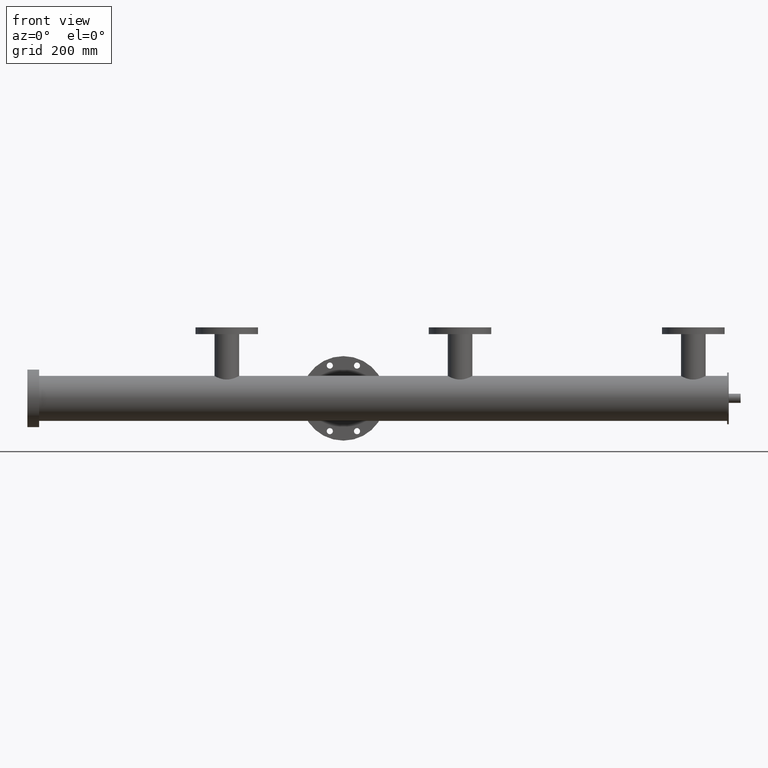
[diagram: clean part render]
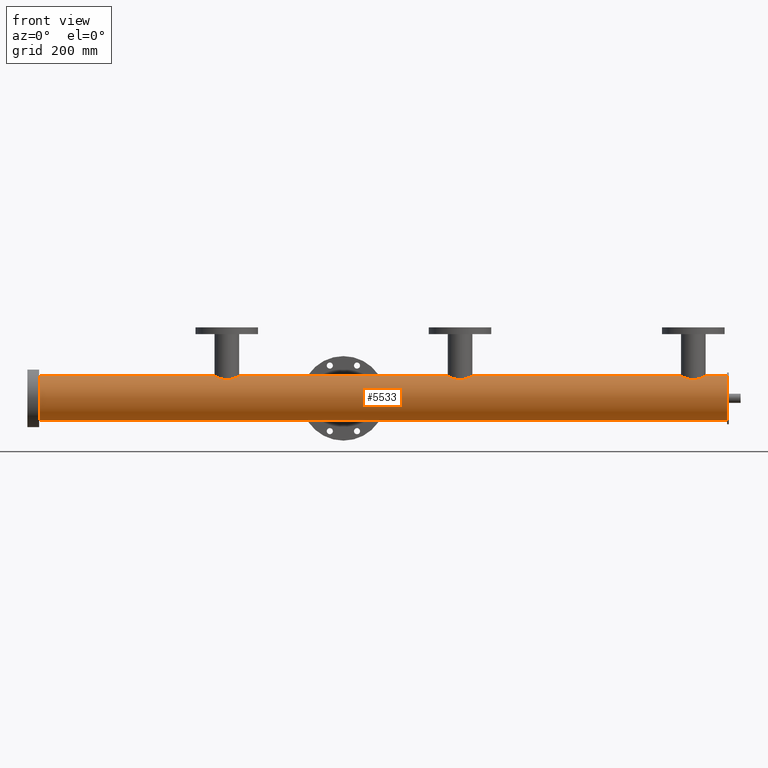
[diagram: same view with one face highlighted and labeled with its STEP entity id]
A machine part, front view. The second image highlights one B-rep face of the part: STEP entity #5533.
In plain terms, the highlighted cylindrical surface (edge-blend (fillet) strip) has radius 66.5 mm, axis along (1, 0, 0).
Its self-contained STEP definition (entity closure, byte-faithful):
#89 = CARTESIAN_POINT ( 'NONE',  ( -490.6003464993487455, -16.33711759300657462, 64.46369925144530555 ) ) ;
#99 = CARTESIAN_POINT ( 'NONE',  ( 239.0838206248115227, -30.38386376601750527, 59.15470864953939412 ) ) ;
#137 = CARTESIAN_POINT ( 'NONE',  ( -490.8624307742287556, -15.87770572054007090, 64.57845619889623379 ) ) ;
#147 = CARTESIAN_POINT ( 'NONE',  ( 251.8978209104271855, -21.49645721872887805, 62.93550375133824559 ) ) ;
#254 = CARTESIAN_POINT ( 'NONE',  ( 946.6439091791817191, -14.54003973623747292, 64.92173641000303519 ) ) ;
#266 = CARTESIAN_POINT ( 'NONE',  ( -429.9999999999997726, -5.798802460949385252E-15, 66.49999999999992895 ) ) ;
#278 = CARTESIAN_POINT ( 'NONE',  ( 1017.500000000000114, 0.000000000000000000, -66.49999999999963052 ) ) ;
#300 = CARTESIAN_POINT ( 'NONE',  ( 948.2341428043525866, -10.58065941645639185, 65.65486511676549242 ) ) ;
#314 = CARTESIAN_POINT ( 'NONE',  ( -494.9999999999998295, 8.143900279030611837E-15, 66.49999999999991473 ) ) ;
#416 = CARTESIAN_POINT ( 'NONE',  ( -455.0221572869511988, -31.63262135138863229, 58.49487150160540239 ) ) ;
#426 = CARTESIAN_POINT ( 'NONE',  ( 196.2799049679013592, -9.046646342517529860, 65.88379997645056108 ) ) ;
#463 = CARTESIAN_POINT ( 'NONE',  ( -458.1775524024804440, -32.28276193811056061, 58.14041014499634485 ) ) ;
#472 = CARTESIAN_POINT ( 'NONE',  ( 201.7124635962680088, -19.89342623918280140, 63.48106952010852666 ) ) ;
#500 = ORIENTED_EDGE ( 'NONE', *, *, #5665, .T. ) ;
#501 = CARTESIAN_POINT ( 'NONE',  ( 893.0432503477297814, -21.50520186190287575, 62.94640447392696103 ) ) ;
#524 = CARTESIAN_POINT ( 'NONE',  ( 215.4374474381412199, -30.18326618409980711, 59.25600196083814808 ) ) ;
#556 = CARTESIAN_POINT ( 'NONE',  ( 937.7312489669564002, -25.44053762020247333, 61.44231490546614793 ) ) ;
#577 = CARTESIAN_POINT ( 'NONE',  ( 885.0000000000001137, 8.143900279030611837E-15, 66.50000000000034106 ) ) ;
#596 = CARTESIAN_POINT ( 'NONE',  ( 885.0000000000001137, 8.143900279030611837E-15, 66.50000000000034106 ) ) ;
#639 = CARTESIAN_POINT ( 'NONE',  ( 937.3174987021217248, -25.76421476236012253, 61.30719563177480325 ) ) ;
#694 = CARTESIAN_POINT ( 'NONE',  ( -460.3097685567193480, -32.49802415920078147, 58.01834564004425232 ) ) ;
#695 = CARTESIAN_POINT ( 'NONE',  ( 916.9893391786833945, -32.50047720460833034, 58.01697149790741292 ) ) ;
#702 = CARTESIAN_POINT ( 'NONE',  ( 260.0000000000001705, 1.451828932459408730E-15, 66.50000000000014211 ) ) ;
#750 = FACE_OUTER_BOUND ( 'NONE', #7704, .T. ) ;
#856 = CARTESIAN_POINT ( 'NONE',  ( 226.4473677612666336, -32.48751152197689862, 58.02424091814594931 ) ) ;
#896 = CARTESIAN_POINT ( 'NONE',  ( -494.2526021183836065, -6.950959456292912897, 66.13787825557211875 ) ) ;
#905 = CARTESIAN_POINT ( 'NONE',  ( 251.1947110778279182, -22.26876835255540499, 62.66552678636684703 ) ) ;
#950 = CARTESIAN_POINT ( 'NONE',  ( 236.5450908552266753, -31.22058121019685828, 58.71590254633272821 ) ) ;
#1050 = ORIENTED_EDGE ( 'NONE', *, *, #7785, .T. ) ;
#1092 = CARTESIAN_POINT ( 'NONE',  ( -1017.500000000000114, 8.143901214329899974E-15, 66.49999999999975842 ) ) ;
#1157 = ORIENTED_EDGE ( 'NONE', *, *, #5733, .F. ) ;
#1167 = CARTESIAN_POINT ( 'NONE',  ( -443.5286975686580035, -26.39351627176981907, 61.03891625320267877 ) ) ;
#1189 = VECTOR ( 'NONE', #3409, 1000.000000000000000 ) ;
#1195 = LINE ( 'NONE', #1092, #2074 ) ;
#1215 = CARTESIAN_POINT ( 'NONE',  ( -435.8351712719633042, -18.58807014262035295, 63.85093123442002394 ) ) ;
#1236 = B_SPLINE_CURVE_WITH_KNOTS ( 'NONE', 3,
 ( #4854, #5815, #4293, #5761, #2556, #7160, #300, #1249, #8856, #254, #6806, #8287, #4482, #1432, #6701, #8942, #7491, #6041, #3741, #556, #639, #3689, #5948, #5147, #5859, #8993, #8898, #2843, #1387, #7541, #6755, #3645, #9799, #695, #2944, #1489, #4434, #5995, #2048, #5901, #8201, #9846, #4392, #5097, #2988, #2092, #9040, #2143, #2187, #1344, #8338, #5242, #9086, #501, #2235, #9742, #5293, #7352, #3555, #4345, #6616, #5195, #2893, #8243, #7450, #9659, #7405, #2802, #3606, #596 ),
 .UNSPECIFIED., .F., .F.,
 ( 4, 2, 2, 2, 2, 2, 2, 2, 2, 2, 2, 2, 2, 2, 2, 2, 2, 2, 2, 2, 2, 2, 2, 2, 2, 2, 2, 2, 2, 2, 2, 2, 2, 2, 4 ),
 ( 5.831139211435620626E-19, 0.006455860333571389158, 0.009683790500357053813, 0.01129775558374988657, 0.01291172066714271933, 0.01936758100071381272, 0.02098154608410646160, 0.02259551116749911395, 0.02582344133428461641, 0.02905137150107011887, 0.03066533658446275387, 0.03227930166785537847, 0.03873516200142537030, 0.04196309216821050847, 0.04357705725160292143, 0.04519102233499533439, 0.05164688266856466703, 0.05326084775195701754, 0.05487481283534934029, 0.05810274300213401355, 0.06133067316891869375, 0.06294463825231118304, 0.06455860333570367926, 0.07101446366927391396, 0.07262842875266668774, 0.07424239383605946152, 0.07747032400284474540, 0.08392618433641531317, 0.08554014941980787878, 0.08715411450320043052, 0.09038204466998554787, 0.09360997483677065134, 0.09522393992016316144, 0.09683790500355565767, 0.1032937653371256009 ),
 .UNSPECIFIED. ) ;
#1249 = CARTESIAN_POINT ( 'NONE',  ( 947.8681308647086325, -11.58941393640335704, 65.48432752803080348 ) ) ;
#1257 = CARTESIAN_POINT ( 'NONE',  ( -431.1185610759086444, -8.521630854505543695, 65.95996233797821162 ) ) ;
#1265 = CARTESIAN_POINT ( 'NONE',  ( 198.3860641839551420, -14.48256934329027246, 64.91085703593954293 ) ) ;
#1314 = CARTESIAN_POINT ( 'NONE',  ( 199.9472799105130605, -17.24466585067884239, 64.22687468752445739 ) ) ;
#1344 = CARTESIAN_POINT ( 'NONE',  ( 897.6676106440215790, -25.75275533123564387, 61.31201170083587471 ) ) ;
#1387 = CARTESIAN_POINT ( 'NONE',  ( 926.0232874793480278, -31.36709160483025371, 58.63768660003470501 ) ) ;
#1419 = CARTESIAN_POINT ( 'NONE',  ( 260.0000000000001705, 1.451828932459408730E-15, 66.50000000000014211 ) ) ;
#1430 = CARTESIAN_POINT ( 'NONE',  ( -463.0106608213164918, -32.50047720460839429, 58.01697149790698660 ) ) ;
#1432 = CARTESIAN_POINT ( 'NONE',  ( 943.2250219917574441, -19.86838393708799444, 63.46411191568851251 ) ) ;
#1452 = AXIS2_PLACEMENT_3D ( 'NONE', #2221, #2976, #9074 ) ;
#1486 = CARTESIAN_POINT ( 'NONE',  ( -442.2687510330438272, -25.44053762020249465, 61.44231490546571450 ) ) ;
#1489 = CARTESIAN_POINT ( 'NONE',  ( 915.3597570859924417, -32.43402225734016753, 58.05415695045451940 ) ) ;
#1500 = DIRECTION ( 'NONE',  ( 0.000000000000000000, 0.000000000000000000, -1.000000000000000000 ) ) ;
#1553 = VERTEX_POINT ( 'NONE', #8788 ) ;
#1579 = CARTESIAN_POINT ( 'NONE',  ( -478.8750424446510578, -28.15188719603587586, 60.26081878886776622 ) ) ;
#1649 = CARTESIAN_POINT ( 'NONE',  ( 234.4533839153063184, -31.75198567177319475, 58.43009525523510206 ) ) ;
#1696 = CARTESIAN_POINT ( 'NONE',  ( 249.7184426718086456, -23.74190772118079806, 62.12236400131252623 ) ) ;
#1732 = CARTESIAN_POINT ( 'NONE',  ( -493.2481479850296182, -10.58045230272212400, 65.66103613714821563 ) ) ;
#1909 = CARTESIAN_POINT ( 'NONE',  ( -436.1424317696909725, -19.02125215995376806, 63.72313667566886863 ) ) ;
#1911 = CARTESIAN_POINT ( 'NONE',  ( 1017.500000000000114, 0.000000000000000000, 3.716803035412216038E-13 ) ) ;
#1962 = CARTESIAN_POINT ( 'NONE',  ( -473.0526476883356395, -30.74377034050737478, 58.96704855649186072 ) ) ;
#1973 = CARTESIAN_POINT ( 'NONE',  ( 211.1249575553490843, -28.15188719603586875, 60.26081878886796517 ) ) ;
#1974 = VECTOR ( 'NONE', #2463, 1000.000000000000000 ) ;
#2010 = CARTESIAN_POINT ( 'NONE',  ( -446.1496801351666477, -28.16664240325653523, 60.25396421655172929 ) ) ;
#2048 = CARTESIAN_POINT ( 'NONE',  ( 912.1282175260076883, -32.07091279753182533, 58.25602818365413071 ) ) ;
#2074 = VECTOR ( 'NONE', #3240, 1000.000000000000000 ) ;
#2092 = CARTESIAN_POINT ( 'NONE',  ( 902.9765427084715839, -29.15261391138777114, 59.77648632114978255 ) ) ;
#2138 = CARTESIAN_POINT ( 'NONE',  ( -1017.500000000000114, 0.000000000000000000, -66.50000000000025580 ) ) ;
#2143 = CARTESIAN_POINT ( 'NONE',  ( 898.9431774753572881, -26.68652535970275252, 60.91126479427822460 ) ) ;
#2145 = VERTEX_POINT ( 'NONE', #1419 ) ;
#2163 = EDGE_CURVE ( 'NONE', #3709, #1553, #9123, .T. ) ;
#2186 = CARTESIAN_POINT ( 'NONE',  ( -451.9151823220562392, -30.74678964464234809, 58.96619826883698323 ) ) ;
#2187 = CARTESIAN_POINT ( 'NONE',  ( 898.5135316510471739, -26.38260969562747604, 61.04363268680940280 ) ) ;
#2221 = CARTESIAN_POINT ( 'NONE',  ( -1017.500000000000114, 0.000000000000000000, -2.513587555249943081E-13 ) ) ;
#2233 = CARTESIAN_POINT ( 'NONE',  ( -431.5939957420342239, -10.06775179215036253, 65.73554274411704057 ) ) ;
#2235 = CARTESIAN_POINT ( 'NONE',  ( 891.7124635962678667, -19.89342623918277653, 63.48106952010876114 ) ) ;
#2239 = LINE ( 'NONE', #3039, #6265 ) ;
#2341 = CARTESIAN_POINT ( 'NONE',  ( -492.8858044542245125, -11.57892316974351488, 65.49171985714049526 ) ) ;
#2399 = CARTESIAN_POINT ( 'NONE',  ( 231.8224475975195844, -32.28276193811053929, 58.14041014499652249 ) ) ;
#2447 = CARTESIAN_POINT ( 'NONE',  ( -481.4864683489528829, -26.38260969562750802, 61.04363268680892674 ) ) ;
#2459 = CARTESIAN_POINT ( 'NONE',  ( 226.9893391786836219, -32.50047720460838008, 58.01697149790717845 ) ) ;
#2463 = DIRECTION ( 'NONE',  ( 1.000000000000000000, -0.000000000000000000, 3.061616997868382648E-16 ) ) ;
#2556 = CARTESIAN_POINT ( 'NONE',  ( 948.8814389240911851, -8.521630854505515273, 65.95996233797862374 ) ) ;
#2568 = DIRECTION ( 'NONE',  ( 0.000000000000000000, 0.000000000000000000, 1.000000000000000000 ) ) ;
#2667 = CARTESIAN_POINT ( 'NONE',  ( -437.1001804757715945, -20.28236925682293545, 63.33290474688263316 ) ) ;
#2677 = CARTESIAN_POINT ( 'NONE',  ( 208.9431774753572029, -26.68652535970280582, 60.91126479427796170 ) ) ;
#2719 = CARTESIAN_POINT ( 'NONE',  ( 195.2122536899324814, -4.295194598552515508, 66.39546478149894426 ) ) ;
#2756 = CARTESIAN_POINT ( 'NONE',  ( -1017.500000000000114, 8.143901214329899974E-15, 66.49999999999975842 ) ) ;
#2773 = CARTESIAN_POINT ( 'NONE',  ( 212.9765427084720102, -29.15261391138783509, 59.77648632114956229 ) ) ;
#2802 = CARTESIAN_POINT ( 'NONE',  ( 885.2122536899324814, -4.295194598552519061, 66.39546478149917164 ) ) ;
#2816 = CARTESIAN_POINT ( 'NONE',  ( 195.0000000000001137, 8.143900279081098935E-15, 66.50000000000012790 ) ) ;
#2843 = CARTESIAN_POINT ( 'NONE',  ( 926.5450908552269311, -31.22058121019681209, 58.71590254633297690 ) ) ;
#2893 = CARTESIAN_POINT ( 'NONE',  ( 886.7518520149703818, -10.58045230272209913, 65.66103613714862774 ) ) ;
#2900 = CARTESIAN_POINT ( 'NONE',  ( 256.6439091791821170, -14.54003973623745694, 64.92173641000285045 ) ) ;
#2943 = CARTESIAN_POINT ( 'NONE',  ( -438.1021790895727577, -21.49645721872888515, 62.93550375133806796 ) ) ;
#2944 = CARTESIAN_POINT ( 'NONE',  ( 916.4473677612667188, -32.48751152197683467, 58.02424091814616247 ) ) ;
#2976 = DIRECTION ( 'NONE',  ( -1.000000000000000000, 0.000000000000000000, -3.061616997868382648E-16 ) ) ;
#2987 = CARTESIAN_POINT ( 'NONE',  ( -436.7749780082425559, -19.86838393708804418, 63.46411191568810040 ) ) ;
#2988 = CARTESIAN_POINT ( 'NONE',  ( 905.4374474381414757, -30.18326618409976803, 59.25600196083839677 ) ) ;
#2998 = VERTEX_POINT ( 'NONE', #577 ) ;
#3032 = CARTESIAN_POINT ( 'NONE',  ( -491.6139358160448865, -14.48256934329026002, 64.91085703593932976 ) ) ;
#3039 = CARTESIAN_POINT ( 'NONE',  ( -1017.500000000000114, 8.143901214329899974E-15, 66.49999999999975842 ) ) ;
#3043 = CARTESIAN_POINT ( 'NONE',  ( 258.8814389240912988, -8.521630854505540142, 65.95996233797841057 ) ) ;
#3137 = CARTESIAN_POINT ( 'NONE',  ( -489.7663189622333562, -17.69403332571381426, 64.10444775405943574 ) ) ;
#3148 = CARTESIAN_POINT ( 'NONE',  ( 234.9778427130488581, -31.63262135138862519, 58.49487150160558002 ) ) ;
#3186 = CARTESIAN_POINT ( 'NONE',  ( -493.7200950320988682, -9.046646342517540518, 65.88379997645037633 ) ) ;
#3197 = CARTESIAN_POINT ( 'NONE',  ( 243.8503198648332955, -28.16664240325650326, 60.25396421655190693 ) ) ;
#3240 = DIRECTION ( 'NONE',  ( 1.000000000000000000, -0.000000000000000000, 3.061616997868382648E-16 ) ) ;
#3302 = EDGE_CURVE ( 'NONE', #7713, #6668, #2239, .T. ) ;
#3305 = ORIENTED_EDGE ( 'NONE', *, *, #3302, .F. ) ;
#3409 = DIRECTION ( 'NONE',  ( 1.000000000000000000, -0.000000000000000000, 3.061616997868382648E-16 ) ) ;
#3418 = CARTESIAN_POINT ( 'NONE',  ( -432.3264679497754059, -12.08681517088212054, 65.39425481188119704 ) ) ;
#3431 = CARTESIAN_POINT ( 'NONE',  ( 196.7518520149704386, -10.58045230272210802, 65.66103613714841458 ) ) ;
#3467 = CARTESIAN_POINT ( 'NONE',  ( -465.1860551135321771, -32.39336001627831507, 58.07688033913021286 ) ) ;
#3511 = CARTESIAN_POINT ( 'NONE',  ( -464.6402429140075583, -32.43402225734023148, 58.05415695045405045 ) ) ;
#3521 = CARTESIAN_POINT ( 'NONE',  ( 195.0000000000000853, -2.155217376311549415, 66.50000000000012790 ) ) ;
#3555 = CARTESIAN_POINT ( 'NONE',  ( 889.1375692257711307, -15.87770572054006024, 64.57845619889666011 ) ) ;
#3566 = CARTESIAN_POINT ( 'NONE',  ( -434.3591281268091393, -16.39549980258526318, 64.47295498344436737 ) ) ;
#3577 = CARTESIAN_POINT ( 'NONE',  ( 203.0432503477298383, -21.50520186190293614, 62.94640447392672655 ) ) ;
#3589 = CARTESIAN_POINT ( 'NONE',  ( 1017.500000000000114, 8.143901214329939417E-15, 66.50000000000038369 ) ) ;
#3606 = CARTESIAN_POINT ( 'NONE',  ( 885.0000000000000000, -2.155217376311589828, 66.50000000000032685 ) ) ;
#3645 = CARTESIAN_POINT ( 'NONE',  ( 921.8224475975196128, -32.28276193811050376, 58.14041014499678539 ) ) ;
#3689 = CARTESIAN_POINT ( 'NONE',  ( 936.4713024313417691, -26.39351627176976223, 61.03891625320314063 ) ) ;
#3690 = ORIENTED_EDGE ( 'NONE', *, *, #4715, .T. ) ;
#3709 = VERTEX_POINT ( 'NONE', #2138 ) ;
#3740 = CARTESIAN_POINT ( 'NONE',  ( -471.0105013242554719, -31.38416806542922899, 58.62942936994296161 ) ) ;
#3741 = CARTESIAN_POINT ( 'NONE',  ( 938.9452872757667592, -24.44273328274575263, 61.84916208856866859 ) ) ;
#3784 = CARTESIAN_POINT ( 'NONE',  ( -482.7492691417767787, -25.42624960050557448, 61.44824104938818010 ) ) ;
#3794 = CARTESIAN_POINT ( 'NONE',  ( 259.7819048226289738, -4.327527077382853804, 66.39264329490796968 ) ) ;
#3827 = B_SPLINE_CURVE_WITH_KNOTS ( 'NONE', 3,
 ( #9085, #8863, #5291, #9798, #1257, #2233, #8335, #7359, #3418, #6475, #3566, #1215, #1909, #2987, #2667, #2943, #5727, #8017, #8767, #1486, #5994, #1167, #9039, #2010, #4212, #9845, #2186, #5241, #7272, #416, #7316, #463, #694, #1430, #5059, #3511, #3467, #4301, #6519, #8816, #3740, #5770, #1962, #5017, #6805, #4697, #1579, #9289, #2447, #9139, #3784, #9888, #6900, #3938, #6090, #3137, #9189, #89, #137, #3032, #5502, #2341, #1732, #3186, #7744, #6846, #896, #6951, #6240, #6299 ),
 .UNSPECIFIED., .F., .F.,
 ( 4, 2, 2, 2, 2, 2, 2, 2, 2, 2, 2, 2, 2, 2, 2, 2, 2, 2, 2, 2, 2, 2, 2, 2, 2, 2, 2, 2, 2, 2, 2, 2, 2, 2, 4 ),
 ( 5.623619763981919999E-18, 0.006455860333570684860, 0.009683790500356025122, 0.01129775558374872257, 0.01291172066714141829, 0.01936758100071227923, 0.02098154608410494545, 0.02259551116749761168, 0.02582344133428282271, 0.02905137150106803373, 0.03066533658446063404, 0.03227930166785322741, 0.03873516200142365640, 0.04196309216820887089, 0.04357705725160147814, 0.04519102233499407845, 0.05164688266856419518, 0.05326084775195672610, 0.05487481283534925702, 0.05810274300213447152, 0.06133067316891969295, 0.06294463825231237653, 0.06455860333570505316, 0.07101446366927535725, 0.07262842875266789511, 0.07424239383606043297, 0.07747032400284553644, 0.08392618433641572950, 0.08554014941980826736, 0.08715411450320079134, 0.09038204466998582542, 0.09360997483677087339, 0.09522393992016336961, 0.09683790500355586583, 0.1032937653371257813 ),
 .UNSPECIFIED. ) ;
#3847 = CARTESIAN_POINT ( 'NONE',  ( 253.2250219917575578, -19.86838393708804418, 63.46411191568829224 ) ) ;
#3884 = AXIS2_PLACEMENT_3D ( 'NONE', #5158, #8297, #1500 ) ;
#3903 = CARTESIAN_POINT ( 'NONE',  ( 247.3174987021217532, -25.76421476236016517, 61.30719563177457587 ) ) ;
#3914 = VERTEX_POINT ( 'NONE', #3589 ) ;
#3938 = CARTESIAN_POINT ( 'NONE',  ( -486.9567496522700480, -21.50520186190293614, 62.94640447392652050 ) ) ;
#3948 = CARTESIAN_POINT ( 'NONE',  ( 218.9894986757445565, -31.38416806542924320, 58.62942936994318899 ) ) ;
#4144 = CARTESIAN_POINT ( 'NONE',  ( 950.0000000000001137, 6.012786395335679729E-16, 66.50000000000035527 ) ) ;
#4212 = CARTESIAN_POINT ( 'NONE',  ( -447.9955941687576342, -29.16039303509963432, 59.77253892126088886 ) ) ;
#4293 = CARTESIAN_POINT ( 'NONE',  ( 949.7819048226284622, -4.327527077382836929, 66.39264329490819705 ) ) ;
#4301 = CARTESIAN_POINT ( 'NONE',  ( -466.8065038170902881, -32.23170311575215408, 58.16685075313523612 ) ) ;
#4310 = CARTESIAN_POINT ( 'NONE',  ( 199.3996535006512829, -16.33711759300657462, 64.46369925144549029 ) ) ;
#4345 = CARTESIAN_POINT ( 'NONE',  ( 888.3860641839549999, -14.48256934329024581, 64.91085703593972767 ) ) ;
#4363 = AXIS2_PLACEMENT_3D ( 'NONE', #1911, #8614, #2568 ) ;
#4392 = CARTESIAN_POINT ( 'NONE',  ( 906.9473523116643037, -30.74377034050733215, 58.96704855649229415 ) ) ;
#4434 = CARTESIAN_POINT ( 'NONE',  ( 914.8139448864682208, -32.39336001627827955, 58.07688033913067471 ) ) ;
#4443 = CYLINDRICAL_SURFACE ( 'NONE', #3884, 66.50000000000000000 ) ;
#4482 = CARTESIAN_POINT ( 'NONE',  ( 943.8575682303089707, -19.02125215995371832, 63.72313667566928075 ) ) ;
#4594 = CARTESIAN_POINT ( 'NONE',  ( 254.1648287280366389, -18.58807014262035295, 63.85093123442020158 ) ) ;
#4647 = CARTESIAN_POINT ( 'NONE',  ( 248.9452872757667876, -24.44273328274575974, 61.84916208856844833 ) ) ;
#4697 = CARTESIAN_POINT ( 'NONE',  ( -477.0234572915280182, -29.15261391138781022, 59.77648632114934912 ) ) ;
#4705 = CARTESIAN_POINT ( 'NONE',  ( 236.0232874793479994, -31.36709160483031056, 58.63768660003447764 ) ) ;
#4715 = EDGE_CURVE ( 'NONE', #5744, #2998, #1236, .T. ) ;
#4750 = CARTESIAN_POINT ( 'NONE',  ( 252.8998195242284055, -20.28236925682294256, 63.33290474688283922 ) ) ;
#4854 = CARTESIAN_POINT ( 'NONE',  ( 950.0000000000001137, 6.012786395335679729E-16, 66.50000000000035527 ) ) ;
#5017 = CARTESIAN_POINT ( 'NONE',  ( -474.0615617557397741, -30.37874384750316992, 59.15593083082470116 ) ) ;
#5023 = DIRECTION ( 'NONE',  ( 1.000000000000000000, -0.000000000000000000, 3.061616997868382648E-16 ) ) ;
#5059 = CARTESIAN_POINT ( 'NONE',  ( -463.5526322387334517, -32.48751152197689152, 58.02424091814570772 ) ) ;
#5097 = CARTESIAN_POINT ( 'NONE',  ( 905.9384382442602828, -30.37874384750314150, 59.15593083082514880 ) ) ;
#5111 = CARTESIAN_POINT ( 'NONE',  ( 215.9384382442600554, -30.37874384750316636, 59.15593083082491432 ) ) ;
#5147 = CARTESIAN_POINT ( 'NONE',  ( 933.8503198648334092, -28.16664240325652457, 60.25396421655212720 ) ) ;
#5158 = CARTESIAN_POINT ( 'NONE',  ( -1017.500000000000114, 0.000000000000000000, -2.513587555249943081E-13 ) ) ;
#5195 = CARTESIAN_POINT ( 'NONE',  ( 887.1141955457753738, -11.57892316974345093, 65.49171985714097843 ) ) ;
#5241 = CARTESIAN_POINT ( 'NONE',  ( -453.4549091447731826, -31.22058121019685473, 58.71590254633250794 ) ) ;
#5242 = CARTESIAN_POINT ( 'NONE',  ( 896.0315658239542245, -24.42262500473959363, 61.85715298267167128 ) ) ;
#5291 = CARTESIAN_POINT ( 'NONE',  ( -430.2180951773710262, -4.327527077382855580, 66.39264329490781336 ) ) ;
#5293 = CARTESIAN_POINT ( 'NONE',  ( 889.9472799105128615, -17.24466585067879265, 64.22687468752468476 ) ) ;
#5355 = CARTESIAN_POINT ( 'NONE',  ( 257.6735320502245372, -12.08681517088211699, 65.39425481188143863 ) ) ;
#5456 = CARTESIAN_POINT ( 'NONE',  ( 222.1282175260080010, -32.07091279753188218, 58.25602818365391045 ) ) ;
#5502 = CARTESIAN_POINT ( 'NONE',  ( -492.0687014019674734, -13.52998416490151712, 65.11663658478155980 ) ) ;
#5510 = CARTESIAN_POINT ( 'NONE',  ( 216.9473523116642184, -30.74377034050737123, 58.96704855649204546 ) ) ;
#5533 = ADVANCED_FACE ( 'NONE', ( #750 ), #4443, .T. ) ;
#5665 = EDGE_CURVE ( 'NONE', #3709, #6256, #8450, .T. ) ;
#5727 = CARTESIAN_POINT ( 'NONE',  ( -438.8052889221720534, -22.26876835255540499, 62.66552678636664098 ) ) ;
#5733 = EDGE_CURVE ( 'NONE', #5744, #3914, #9607, .T. ) ;
#5738 = CARTESIAN_POINT ( 'NONE',  ( 207.6676106440216927, -25.75275533123570781, 61.31201170083564023 ) ) ;
#5744 = VERTEX_POINT ( 'NONE', #4144 ) ;
#5761 = CARTESIAN_POINT ( 'NONE',  ( 949.1455196470400324, -7.480695399792812061, 66.08634004019403108 ) ) ;
#5770 = CARTESIAN_POINT ( 'NONE',  ( -472.5447224014517360, -30.91342283483160713, 58.87819449495683699 ) ) ;
#5815 = CARTESIAN_POINT ( 'NONE',  ( 950.0000000000000000, -2.185214403985233922, 66.50000000000039790 ) ) ;
#5833 = CARTESIAN_POINT ( 'NONE',  ( 208.5135316510470034, -26.38260969562752933, 61.04363268680915411 ) ) ;
#5859 = CARTESIAN_POINT ( 'NONE',  ( 932.0044058312424795, -29.16039303509956326, 59.77253892126132229 ) ) ;
#5877 = ORIENTED_EDGE ( 'NONE', *, *, #9518, .T. ) ;
#5901 = CARTESIAN_POINT ( 'NONE',  ( 910.0262177283179881, -31.64714952677840643, 58.48731652445106022 ) ) ;
#5948 = CARTESIAN_POINT ( 'NONE',  ( 936.0385697799322315, -26.69923406226834928, 60.90569778143426305 ) ) ;
#5994 = CARTESIAN_POINT ( 'NONE',  ( -442.6825012978782752, -25.76421476236017583, 61.30719563177434850 ) ) ;
#5995 = CARTESIAN_POINT ( 'NONE',  ( 913.1934961829097119, -32.23170311575210434, 58.16685075313566955 ) ) ;
#6040 = DIRECTION ( 'NONE',  ( 1.000000000000000000, -0.000000000000000000, 3.061616997868382648E-16 ) ) ;
#6041 = CARTESIAN_POINT ( 'NONE',  ( 939.7184426718088162, -23.74190772118074833, 62.12236400131276781 ) ) ;
#6090 = CARTESIAN_POINT ( 'NONE',  ( -488.2875364037320196, -19.89342623918279784, 63.48106952010834902 ) ) ;
#6102 = CARTESIAN_POINT ( 'NONE',  ( 258.2341428043524729, -10.58065941645636343, 65.65486511676525083 ) ) ;
#6202 = CARTESIAN_POINT ( 'NONE',  ( 224.8139448864678513, -32.39336001627832218, 58.07688033913041892 ) ) ;
#6240 = CARTESIAN_POINT ( 'NONE',  ( -494.9999999999998863, -2.155217376311592048, 66.49999999999991473 ) ) ;
#6253 = CARTESIAN_POINT ( 'NONE',  ( 217.4552775985482924, -30.91342283483161424, 58.87819449495704305 ) ) ;
#6256 = VERTEX_POINT ( 'NONE', #278 ) ;
#6265 = VECTOR ( 'NONE', #5023, 1000.000000000000000 ) ;
#6299 = CARTESIAN_POINT ( 'NONE',  ( -494.9999999999998295, 8.143900279030611837E-15, 66.49999999999991473 ) ) ;
#6404 = ORIENTED_EDGE ( 'NONE', *, *, #9190, .F. ) ;
#6475 = CARTESIAN_POINT ( 'NONE',  ( -433.3560908208178830, -14.54003973623745871, 64.92173641000262307 ) ) ;
#6519 = CARTESIAN_POINT ( 'NONE',  ( -467.8717824739919706, -32.07091279753187507, 58.25602818365370439 ) ) ;
#6536 = ORIENTED_EDGE ( 'NONE', *, *, #6554, .F. ) ;
#6554 = EDGE_CURVE ( 'NONE', #1553, #7611, #9616, .T. ) ;
#6572 = EDGE_CURVE ( 'NONE', #7713, #7611, #3827, .T. ) ;
#6581 = CARTESIAN_POINT ( 'NONE',  ( 195.7473978816163367, -6.950959456292912009, 66.13787825557231770 ) ) ;
#6616 = CARTESIAN_POINT ( 'NONE',  ( 887.9312985980326403, -13.52998416490146205, 65.11663658478197192 ) ) ;
#6632 = CARTESIAN_POINT ( 'NONE',  ( 196.1345415598537727, -8.529350166056778093, 65.95284912618396334 ) ) ;
#6668 = VERTEX_POINT ( 'NONE', #7047 ) ;
#6701 = CARTESIAN_POINT ( 'NONE',  ( 942.8998195242284055, -20.28236925682291414, 63.33290474688306659 ) ) ;
#6703 = ORIENTED_EDGE ( 'NONE', *, *, #2163, .F. ) ;
#6754 = CARTESIAN_POINT ( 'NONE',  ( -1017.500000000000114, 8.143901214329899974E-15, 66.49999999999975842 ) ) ;
#6755 = CARTESIAN_POINT ( 'NONE',  ( 924.4533839153065173, -31.75198567177314857, 58.43009525523532943 ) ) ;
#6805 = CARTESIAN_POINT ( 'NONE',  ( -474.5625525618584675, -30.18326618409979645, 59.25600196083793492 ) ) ;
#6806 = CARTESIAN_POINT ( 'NONE',  ( 945.6408718731906902, -16.39549980258529160, 64.47295498344475106 ) ) ;
#6846 = CARTESIAN_POINT ( 'NONE',  ( -494.1315878033616968, -7.482275753670950991, 66.07982802385612331 ) ) ;
#6856 = CARTESIAN_POINT ( 'NONE',  ( 259.1455196470403735, -7.480695399792832490, 66.08634004019384633 ) ) ;
#6900 = CARTESIAN_POINT ( 'NONE',  ( -484.7429553608569677, -23.71898004728863185, 62.13113850031564311 ) ) ;
#6951 = CARTESIAN_POINT ( 'NONE',  ( -494.7877463100675186, -4.295194598552552812, 66.39546478149877373 ) ) ;
#6964 = CARTESIAN_POINT ( 'NONE',  ( 246.4713024313417122, -26.39351627176979420, 61.03891625320289194 ) ) ;
#7009 = CARTESIAN_POINT ( 'NONE',  ( 246.0385697799324305, -26.69923406226831730, 60.90569778143403568 ) ) ;
#7047 = CARTESIAN_POINT ( 'NONE',  ( 195.0000000000001137, 8.143900279081098935E-15, 66.50000000000012790 ) ) ;
#7086 = VECTOR ( 'NONE', #6040, 1000.000000000000000 ) ;
#7099 = CIRCLE ( 'NONE', #4363, 66.50000000000000000 ) ;
#7160 = CARTESIAN_POINT ( 'NONE',  ( 948.4060042579657193, -10.06775179215033589, 65.73554274411746690 ) ) ;
#7163 = ORIENTED_EDGE ( 'NONE', *, *, #6572, .T. ) ;
#7234 = CARTESIAN_POINT ( 'NONE',  ( 197.1141955457754591, -11.57892316974351843, 65.49171985714076527 ) ) ;
#7272 = CARTESIAN_POINT ( 'NONE',  ( -453.9767125206519154, -31.36709160483031056, 58.63768660003426447 ) ) ;
#7316 = CARTESIAN_POINT ( 'NONE',  ( -455.5466160846937100, -31.75198567177320186, 58.43009525523488179 ) ) ;
#7352 = CARTESIAN_POINT ( 'NONE',  ( 889.3996535006513113, -16.33711759300653910, 64.46369925144571766 ) ) ;
#7359 = CARTESIAN_POINT ( 'NONE',  ( -432.1318691352912538, -11.58941393640333573, 65.48432752803041978 ) ) ;
#7372 = CARTESIAN_POINT ( 'NONE',  ( 200.2336810377666723, -17.69403332571382848, 64.10444775405966311 ) ) ;
#7405 = CARTESIAN_POINT ( 'NONE',  ( 885.7473978816166209, -6.950959456292914673, 66.13787825557255928 ) ) ;
#7450 = CARTESIAN_POINT ( 'NONE',  ( 886.1345415598536874, -8.529350166056739013, 65.95284912618419071 ) ) ;
#7455 = CARTESIAN_POINT ( 'NONE',  ( 258.4060042579656056, -10.06775179215036253, 65.73554274411726794 ) ) ;
#7491 = CARTESIAN_POINT ( 'NONE',  ( 941.1947110778276055, -22.26876835255535170, 62.66552678636705309 ) ) ;
#7541 = CARTESIAN_POINT ( 'NONE',  ( 924.9778427130488581, -31.63262135138859321, 58.49487150160584292 ) ) ;
#7611 = VERTEX_POINT ( 'NONE', #314 ) ;
#7643 = CARTESIAN_POINT ( 'NONE',  ( 253.8575682303090275, -19.02125215995376806, 63.72313667566907469 ) ) ;
#7701 = CARTESIAN_POINT ( 'NONE',  ( 229.6902314432807088, -32.49802415920077436, 58.01834564004441575 ) ) ;
#7704 = EDGE_LOOP ( 'NONE', ( #6536, #6703, #500, #1050, #1157, #3690, #6404, #5877, #3305, #7163 ) ) ;
#7713 = VERTEX_POINT ( 'NONE', #266 ) ;
#7744 = CARTESIAN_POINT ( 'NONE',  ( -493.8654584401463126, -8.529350166056783422, 65.95284912618377859 ) ) ;
#7754 = CARTESIAN_POINT ( 'NONE',  ( 225.3597570859924133, -32.43402225734022437, 58.05415695045427071 ) ) ;
#7785 = EDGE_CURVE ( 'NONE', #6256, #3914, #7099, .T. ) ;
#7801 = CARTESIAN_POINT ( 'NONE',  ( 247.7312489669564002, -25.44053762020247333, 61.44231490546592056 ) ) ;
#8017 = CARTESIAN_POINT ( 'NONE',  ( -440.2815573281912975, -23.74190772118079096, 62.12236400131229885 ) ) ;
#8123 = CARTESIAN_POINT ( 'NONE',  ( 206.0315658239544234, -24.42262500473961140, 61.85715298267146522 ) ) ;
#8168 = CARTESIAN_POINT ( 'NONE',  ( 205.2570446391431176, -23.71898004728863540, 62.13113850031584917 ) ) ;
#8201 = CARTESIAN_POINT ( 'NONE',  ( 908.9894986757445849, -31.38416806542916504, 58.62942936994343057 ) ) ;
#8216 = CARTESIAN_POINT ( 'NONE',  ( 199.1375692257712444, -15.87770572054008866, 64.57845619889647537 ) ) ;
#8243 = CARTESIAN_POINT ( 'NONE',  ( 886.2799049679013024, -9.046646342517517425, 65.88379997645078845 ) ) ;
#8287 = CARTESIAN_POINT ( 'NONE',  ( 944.1648287280368095, -18.58807014262038493, 63.85093123442040053 ) ) ;
#8297 = DIRECTION ( 'NONE',  ( 1.000000000000000000, -0.000000000000000000, 3.061616997868382648E-16 ) ) ;
#8335 = CARTESIAN_POINT ( 'NONE',  ( -431.7658571956474134, -10.58065941645636876, 65.65486511676506609 ) ) ;
#8338 = CARTESIAN_POINT ( 'NONE',  ( 897.2507308582231644, -25.42624960050554606, 61.44824104938863485 ) ) ;
#8348 = CARTESIAN_POINT ( 'NONE',  ( 260.0000000000002274, -2.185214403985237475, 66.50000000000015632 ) ) ;
#8398 = CARTESIAN_POINT ( 'NONE',  ( 255.6408718731908891, -16.39549980258525963, 64.47295498344458053 ) ) ;
#8450 = LINE ( 'NONE', #9251, #1974 ) ;
#8500 = CARTESIAN_POINT ( 'NONE',  ( 220.0262177283179881, -31.64714952677843840, 58.48731652445083995 ) ) ;
#8553 = CARTESIAN_POINT ( 'NONE',  ( 242.0044058312424795, -29.16039303509960945, 59.77253892126108070 ) ) ;
#8614 = DIRECTION ( 'NONE',  ( -1.000000000000000000, 0.000000000000000000, -3.061616997868382648E-16 ) ) ;
#8767 = CARTESIAN_POINT ( 'NONE',  ( -441.0547127242332408, -24.44273328274578105, 61.84916208856820674 ) ) ;
#8788 = CARTESIAN_POINT ( 'NONE',  ( -1017.500000000000114, 8.143901214329899974E-15, 66.49999999999975842 ) ) ;
#8816 = CARTESIAN_POINT ( 'NONE',  ( -469.9737822716820119, -31.64714952677843129, 58.48731652445061968 ) ) ;
#8856 = CARTESIAN_POINT ( 'NONE',  ( 947.6735320502245941, -12.08681517088214363, 65.39425481188162337 ) ) ;
#8863 = CARTESIAN_POINT ( 'NONE',  ( -429.9999999999997726, -2.185214403985237031, 66.49999999999994316 ) ) ;
#8898 = CARTESIAN_POINT ( 'NONE',  ( 928.0848176779438745, -30.74678964464229480, 58.96619826883743087 ) ) ;
#8942 = CARTESIAN_POINT ( 'NONE',  ( 941.8978209104268444, -21.49645721872884607, 62.93550375133846586 ) ) ;
#8993 = CARTESIAN_POINT ( 'NONE',  ( 929.0838206248114375, -30.38386376601745908, 59.15470864953964281 ) ) ;
#9039 = CARTESIAN_POINT ( 'NONE',  ( -443.9614302200675411, -26.69923406226834217, 60.90569778143382251 ) ) ;
#9040 = CARTESIAN_POINT ( 'NONE',  ( 901.1249575553492832, -28.15188719603582967, 60.26081878886821386 ) ) ;
#9074 = DIRECTION ( 'NONE',  ( 0.000000000000000000, 0.000000000000000000, 1.000000000000000000 ) ) ;
#9085 = CARTESIAN_POINT ( 'NONE',  ( -429.9999999999997726, -5.798802460949385252E-15, 66.49999999999992895 ) ) ;
#9086 = CARTESIAN_POINT ( 'NONE',  ( 895.2570446391431460, -23.71898004728857501, 62.13113850031606944 ) ) ;
#9123 = CIRCLE ( 'NONE', #1452, 66.50000000000000000 ) ;
#9139 = CARTESIAN_POINT ( 'NONE',  ( -482.3323893559783073, -25.75275533123565452, 61.31201170083540575 ) ) ;
#9154 = CARTESIAN_POINT ( 'NONE',  ( 257.8681308647088031, -11.58941393640333395, 65.48432752803063295 ) ) ;
#9189 = CARTESIAN_POINT ( 'NONE',  ( -490.0527200894869679, -17.24466585067883884, 64.22687468752424422 ) ) ;
#9190 = EDGE_CURVE ( 'NONE', #2145, #2998, #1195, .T. ) ;
#9247 = CARTESIAN_POINT ( 'NONE',  ( 223.1934961829097404, -32.23170311575216829, 58.16685075313544218 ) ) ;
#9251 = CARTESIAN_POINT ( 'NONE',  ( -1017.500000000000114, 0.000000000000000000, -66.50000000000025580 ) ) ;
#9289 = CARTESIAN_POINT ( 'NONE',  ( -481.0568225246428256, -26.68652535970279160, 60.91126479427776275 ) ) ;
#9302 = CARTESIAN_POINT ( 'NONE',  ( 238.0848176779438745, -30.74678964464234454, 58.96619826883719639 ) ) ;
#9518 = EDGE_CURVE ( 'NONE', #2145, #6668, #9697, .T. ) ;
#9532 = CARTESIAN_POINT ( 'NONE',  ( 195.8684121966383316, -7.482275753670947438, 66.07982802385629384 ) ) ;
#9577 = CARTESIAN_POINT ( 'NONE',  ( 207.2507308582230507, -25.42624960050555671, 61.44824104938840037 ) ) ;
#9607 = LINE ( 'NONE', #2756, #1189 ) ;
#9616 = LINE ( 'NONE', #6754, #7086 ) ;
#9659 = CARTESIAN_POINT ( 'NONE',  ( 885.8684121966383600, -7.482275753670909246, 66.07982802385656385 ) ) ;
#9671 = CARTESIAN_POINT ( 'NONE',  ( 197.9312985980325550, -13.52998416490151712, 65.11663658478178718 ) ) ;
#9697 = B_SPLINE_CURVE_WITH_KNOTS ( 'NONE', 3,
 ( #702, #8348, #3794, #6856, #3043, #7455, #6102, #9154, #5355, #2900, #8398, #4594, #7643, #3847, #4750, #147, #905, #1696, #4647, #7801, #3903, #6964, #7009, #3197, #8553, #99, #9302, #950, #4705, #3148, #1649, #2399, #7701, #2459, #856, #7754, #6202, #9247, #5456, #8500, #3948, #6253, #5510, #5111, #524, #2773, #1973, #2677, #5833, #5738, #9577, #8123, #8168, #3577, #472, #7372, #1314, #4310, #8216, #1265, #9671, #7234, #3431, #426, #6632, #9532, #6581, #2719, #3521, #2816 ),
 .UNSPECIFIED., .F., .F.,
 ( 4, 2, 2, 2, 2, 2, 2, 2, 2, 2, 2, 2, 2, 2, 2, 2, 2, 2, 2, 2, 2, 2, 2, 2, 2, 2, 2, 2, 2, 2, 2, 2, 2, 2, 4 ),
 ( 1.407968961433254265E-18, 0.006455860333570716085, 0.009683790500356070224, 0.01129775558374877288, 0.01291172066714147727, 0.01936758100071236596, 0.02098154608410504954, 0.02259551116749773658, 0.02582344133428303087, 0.02905137150106821067, 0.03066533658446080057, 0.03227930166785339394, 0.03873516200142375354, 0.04196309216820894028, 0.04357705725160149896, 0.04519102233499405069, 0.05164688266856425763, 0.05326084775195683019, 0.05487481283534936805, 0.05810274300213448539, 0.06133067316891958193, 0.06294463825231214060, 0.06455860333570469234, 0.07101446366927496867, 0.07262842875266754816, 0.07424239383606014153, 0.07747032400284525888, 0.08392618433641543807, 0.08554014941980796205, 0.08715411450320049991, 0.09038204466998556175, 0.09360997483677062359, 0.09522393992016314757, 0.09683790500355568542, 0.1032937653371257675 ),
 .UNSPECIFIED. ) ;
#9742 = CARTESIAN_POINT ( 'NONE',  ( 890.2336810377665870, -17.69403332571380361, 64.10444775405986206 ) ) ;
#9798 = CARTESIAN_POINT ( 'NONE',  ( -430.8544803529597971, -7.480695399792836042, 66.08634004019364738 ) ) ;
#9799 = CARTESIAN_POINT ( 'NONE',  ( 919.6902314432807088, -32.49802415920070331, 58.01834564004468575 ) ) ;
#9845 = CARTESIAN_POINT ( 'NONE',  ( -450.9161793751883351, -30.38386376601751238, 59.15470864953917385 ) ) ;
#9846 = CARTESIAN_POINT ( 'NONE',  ( 907.4552775985479229, -30.91342283483152897, 58.87819449495729174 ) ) ;
#9888 = CARTESIAN_POINT ( 'NONE',  ( -483.9684341760456050, -24.42262500473964337, 61.85715298267125917 ) ) ;